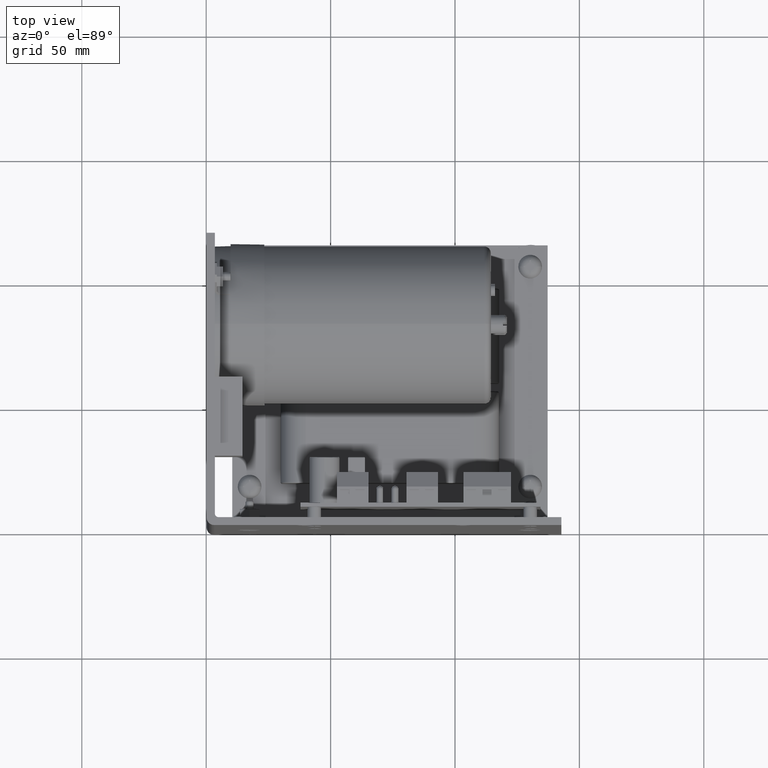
[diagram: clean part render]
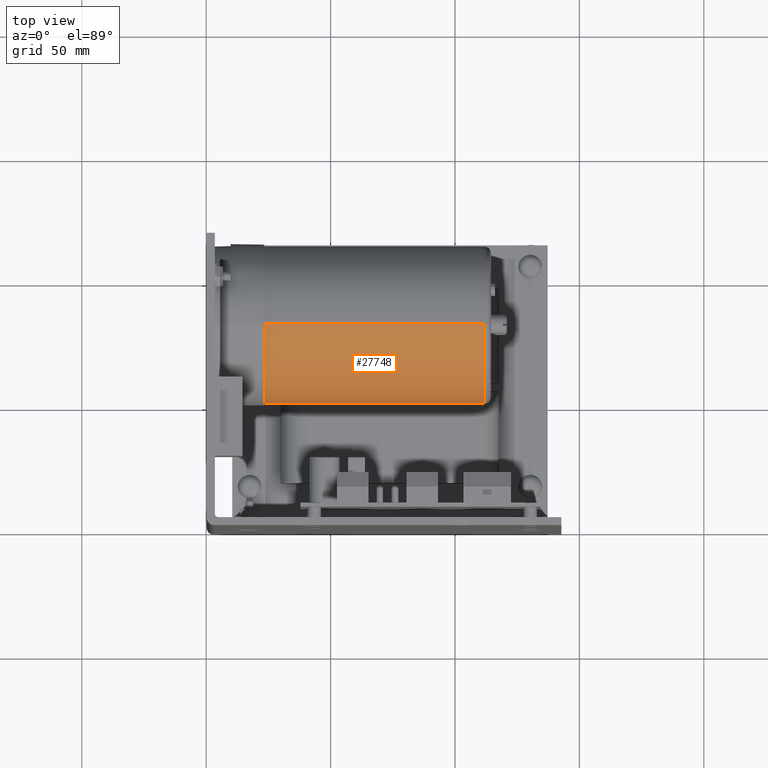
[diagram: same view with one face highlighted and labeled with its STEP entity id]
A machine part, top view. The second image highlights one B-rep face of the part: STEP entity #27748.
In plain terms, the highlighted cylindrical surface (partial cylindrical patch) has radius 31.75 mm, axis along (-1, -0, -0).
Its self-contained STEP definition (entity closure, byte-faithful):
#24 = VECTOR ( 'NONE', #17912, 39.37007874015748100 ) ;
#779 = CARTESIAN_POINT ( 'NONE',  ( 0.9180705299999754000, 3.205000000000432600, 1.754671937559041400 ) ) ;
#1491 = ORIENTED_EDGE ( 'NONE', *, *, #15065, .T. ) ;
#2499 = FACE_OUTER_BOUND ( 'NONE', #2597, .T. ) ;
#2556 = LINE ( 'NONE', #26817, #24 ) ;
#2597 = EDGE_LOOP ( 'NONE', ( #21033, #1491, #18863, #11903 ) ) ;
#3014 = DIRECTION ( 'NONE',  ( 1.000000000000000000, -0.0000000000000000000, 0.0000000000000000000 ) ) ;
#4673 = CARTESIAN_POINT ( 'NONE',  ( 4.402320529999975900, 3.205000002417780300, 1.754671999999999600 ) ) ;
#5074 = DIRECTION ( 'NONE',  ( 0.0000000000000000000, 0.0000000000000000000, 1.000000000000000000 ) ) ;
#6189 = VERTEX_POINT ( 'NONE', #18019 ) ;
#6812 = DIRECTION ( 'NONE',  ( -1.000000000000000000, -0.0000000000000000000, -0.0000000000000000000 ) ) ;
#8719 = EDGE_CURVE ( 'NONE', #6189, #29392, #28912, .T. ) ;
#8884 = AXIS2_PLACEMENT_3D ( 'NONE', #779, #3014, #19715 ) ;
#9973 = AXIS2_PLACEMENT_3D ( 'NONE', #4673, #6812, #23187 ) ;
#10167 = VERTEX_POINT ( 'NONE', #23758 ) ;
#10744 = LINE ( 'NONE', #25406, #21256 ) ;
#11377 = CARTESIAN_POINT ( 'NONE',  ( 4.402320529999975900, 3.205000002417780300, 0.5046719999999995700 ) ) ;
#11903 = ORIENTED_EDGE ( 'NONE', *, *, #8719, .T. ) ;
#12000 = EDGE_CURVE ( 'NONE', #10167, #6189, #2556, .T. ) ;
#14028 = AXIS2_PLACEMENT_3D ( 'NONE', #20633, #25408, #5074 ) ;
#14636 = CARTESIAN_POINT ( 'NONE',  ( 0.9180705299999754000, 3.205000002417780300, 0.5046719375592823000 ) ) ;
#15065 = EDGE_CURVE ( 'NONE', #26335, #10167, #28815, .T. ) ;
#17422 = CYLINDRICAL_SURFACE ( 'NONE', #14028, 1.250000000000000000 ) ;
#17912 = DIRECTION ( 'NONE',  ( -1.000000000000000000, -0.0000000000000000000, -0.0000000000000000000 ) ) ;
#18019 = CARTESIAN_POINT ( 'NONE',  ( 0.9180705299999754000, 3.205000002417780300, 3.004671937558800500 ) ) ;
#18519 = DIRECTION ( 'NONE',  ( -1.000000000000000000, -0.0000000000000000000, -0.0000000000000000000 ) ) ;
#18863 = ORIENTED_EDGE ( 'NONE', *, *, #12000, .T. ) ;
#19715 = DIRECTION ( 'NONE',  ( 0.0000000000000000000, 0.0000000000000000000, -1.000000000000000000 ) ) ;
#19961 = EDGE_CURVE ( 'NONE', #26335, #29392, #10744, .T. ) ;
#20633 = CARTESIAN_POINT ( 'NONE',  ( 4.502320529999975600, 3.205000002417780300, 1.754671999999999600 ) ) ;
#21033 = ORIENTED_EDGE ( 'NONE', *, *, #19961, .F. ) ;
#21256 = VECTOR ( 'NONE', #18519, 39.37007874015748100 ) ;
#23187 = DIRECTION ( 'NONE',  ( 0.0000000000000000000, 0.0000000000000000000, -1.000000000000000000 ) ) ;
#23758 = CARTESIAN_POINT ( 'NONE',  ( 4.402320529999975900, 3.205000002417780300, 3.004671999999999800 ) ) ;
#25406 = CARTESIAN_POINT ( 'NONE',  ( 4.502320529999975600, 3.205000002417780300, 0.5046719999999995700 ) ) ;
#25408 = DIRECTION ( 'NONE',  ( -1.000000000000000000, -0.0000000000000000000, -0.0000000000000000000 ) ) ;
#26335 = VERTEX_POINT ( 'NONE', #11377 ) ;
#26817 = CARTESIAN_POINT ( 'NONE',  ( 4.502320529999975600, 3.205000002417780300, 3.004671999999999800 ) ) ;
#27748 = ADVANCED_FACE ( 'NONE', ( #2499 ), #17422, .T. ) ;
#28815 = CIRCLE ( 'NONE', #9973, 1.250000000000000000 ) ;
#28912 = CIRCLE ( 'NONE', #8884, 1.249999999999759100 ) ;
#29392 = VERTEX_POINT ( 'NONE', #14636 ) ;